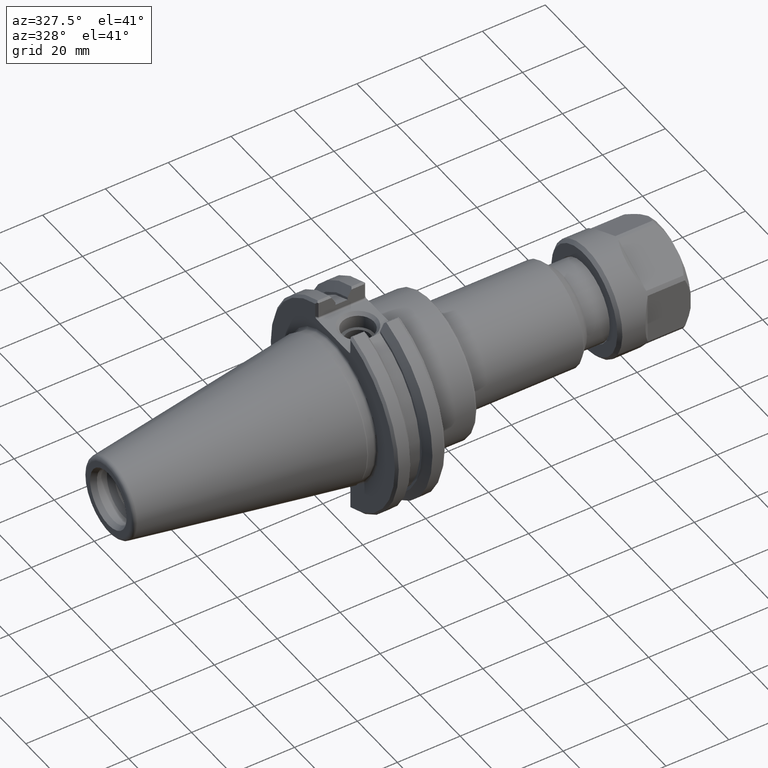
[diagram: clean part render]
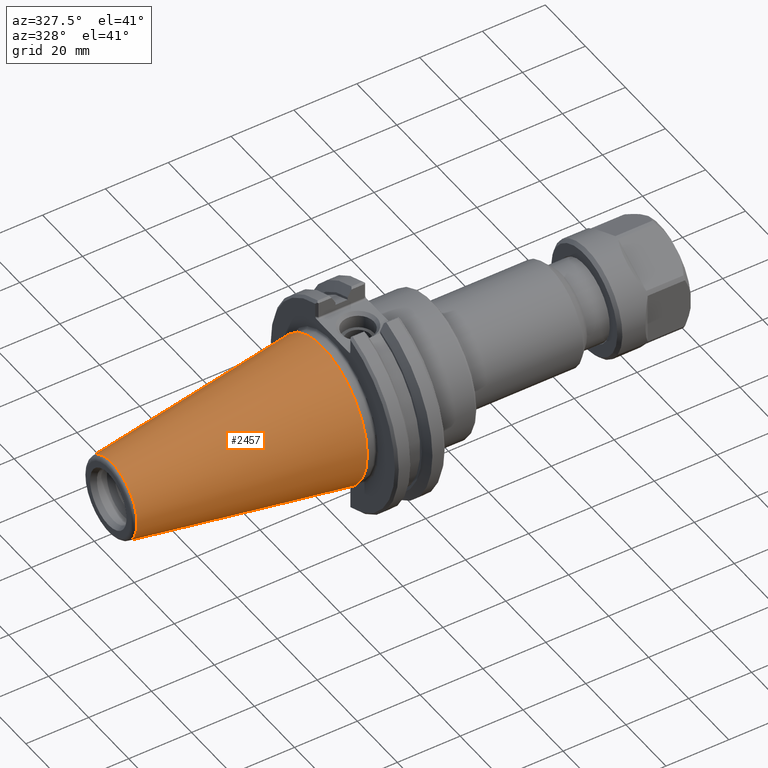
[diagram: same view with one face highlighted and labeled with its STEP entity id]
A machine part, auxiliary view. The second image highlights one B-rep face of the part: STEP entity #2457.
In plain terms, the highlighted conical surface has half-angle 8.297 deg.
Its self-contained STEP definition (entity closure, byte-faithful):
#894=CARTESIAN_POINT('',(0.0,0.875,0.0));
#895=VERTEX_POINT('',#894);
#896=CARTESIAN_POINT('',(0.0,0.0,0.0));
#897=DIRECTION('',(1.0,1.624514E-013,0.0));
#898=DIRECTION('',(-1.624514E-013,1.0,0.0));
#899=AXIS2_PLACEMENT_3D('',#896,#897,#898);
#900=CIRCLE('',#899,0.875);
#901=EDGE_CURVE('',#895,#895,#900,.T.);
#2422=CARTESIAN_POINT('',(-2.641292437025116,0.489818344728471,-1.199709E-016));
#2423=VERTEX_POINT('',#2422);
#2424=CARTESIAN_POINT('',(-2.641292437025114,1.136449E-014,-5.998545E-017));
#2425=DIRECTION('',(-1.0,0.0,0.0));
#2426=DIRECTION('',(0.0,-1.0,0.0));
#2427=AXIS2_PLACEMENT_3D('',#2424,#2425,#2426);
#2428=CIRCLE('',#2427,0.48981834472846);
#2429=EDGE_CURVE('',#2423,#2423,#2428,.T.);
#2446=CARTESIAN_POINT('',(-1.34375,0.0,0.0));
#2447=DIRECTION('',(1.0,0.0,0.0));
#2448=DIRECTION('',(-1.624514E-013,1.0,0.0));
#2449=AXIS2_PLACEMENT_3D('',#2446,#2447,#2448);
#2450=CONICAL_SURFACE('',#2449,0.67903993059773,8.296999999999994);
#2451=ORIENTED_EDGE('',*,*,#901,.F.);
#2452=EDGE_LOOP('',(#2451));
#2453=FACE_OUTER_BOUND('',#2452,.T.);
#2454=ORIENTED_EDGE('',*,*,#2429,.F.);
#2455=EDGE_LOOP('',(#2454));
#2456=FACE_BOUND('',#2455,.T.);
#2457=ADVANCED_FACE('',(#2453,#2456),#2450,.T.);